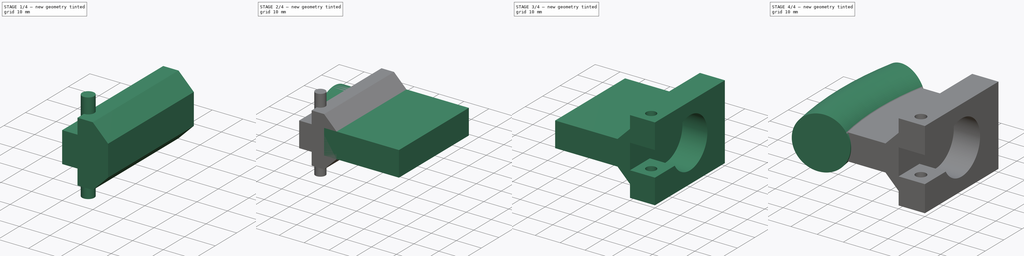
[diagram: build sequence overview — one tinted view per stage of 4, left to right]
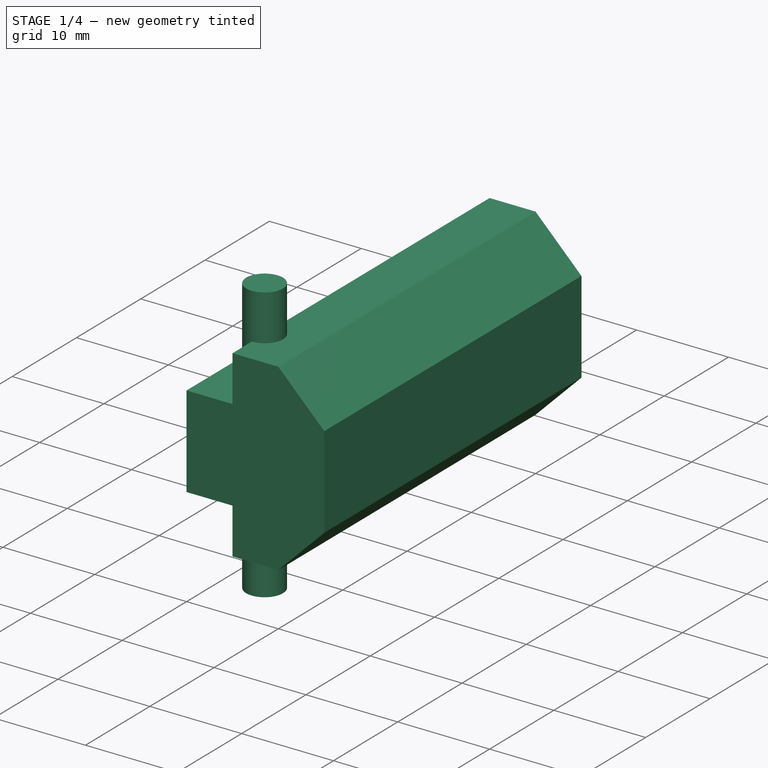
[diagram: stage 1 of 4 — iso view after this stage's code; geometry added in this stage tinted green]
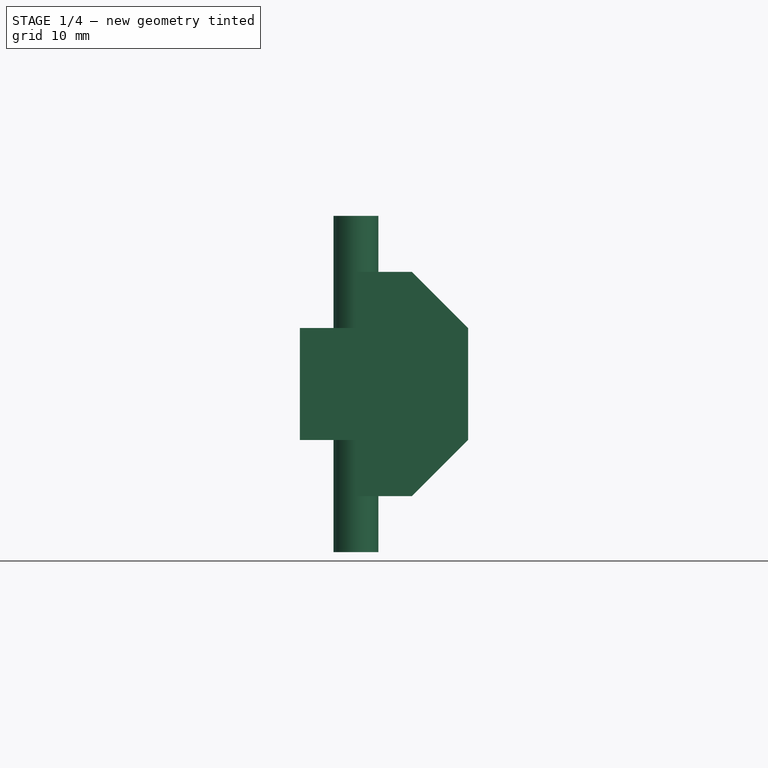
[diagram: stage 1 of 4 — front view after this stage's code; geometry added in this stage tinted green]
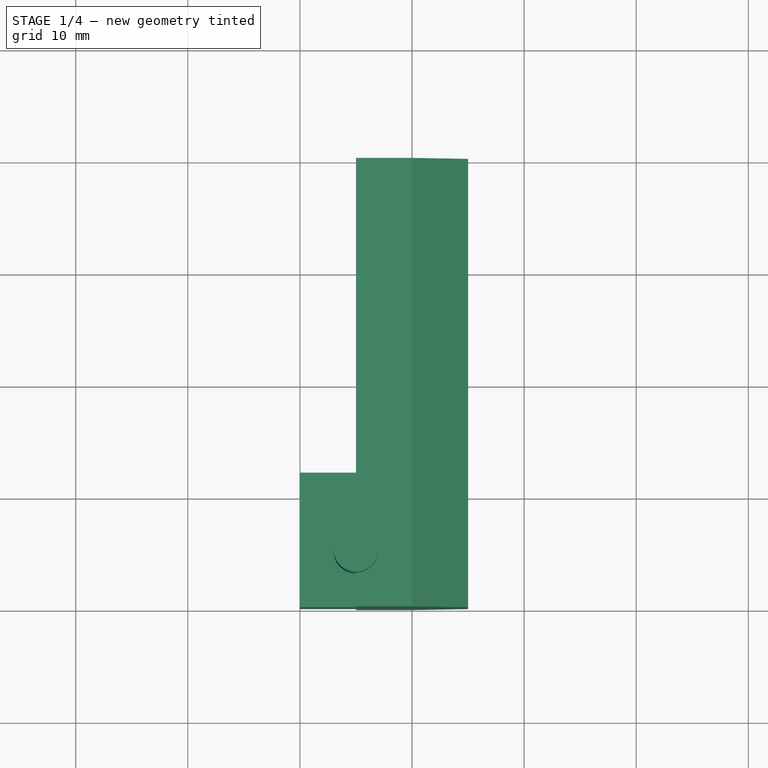
[diagram: stage 1 of 4 — top view after this stage's code; geometry added in this stage tinted green]
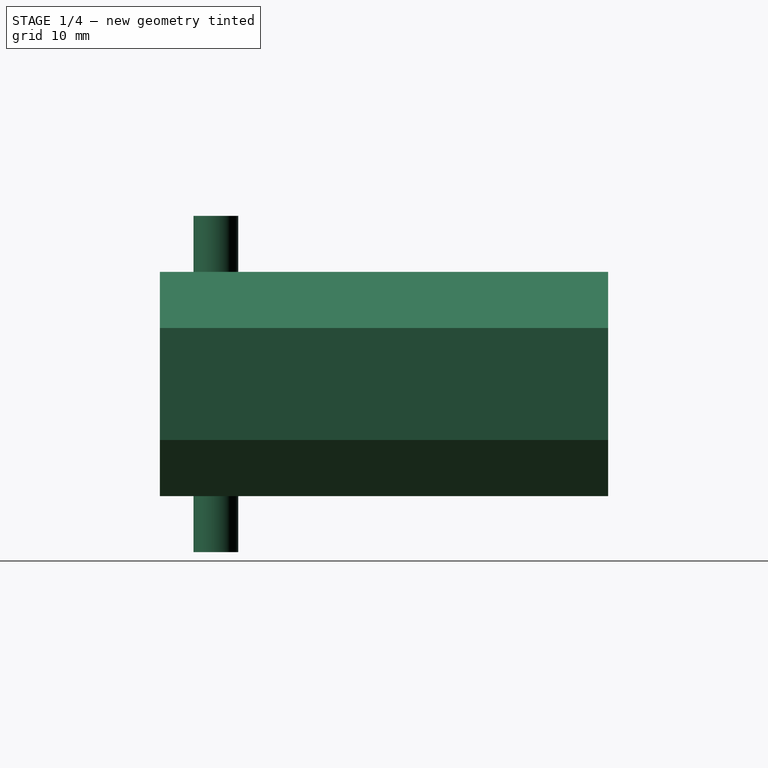
[diagram: stage 1 of 4 — right view after this stage's code; geometry added in this stage tinted green]
FCSTD DOCUMENT  (FreeCAD 0.17R13522 (Git))
Label: turnouter
License: All rights reserved
LicenseURL: http://en.wikipedia.org/wiki/All_rights_reserved
objects: Part::Box×4, Part::Cylinder×2, Part::MultiFuse×2, Part::Torus×1, Sketcher::SketchObject×1, PartDesign::Pad×1, PartDesign::Body×1, Spreadsheet::Sheet×1, Part::MultiCommon×1, Part::Chamfer×1, Part::Cut×1, Part::Compound×1
note: 17 computed .brp shape members not serialized (recipe doc carries the construction recipe); baked Part::Feature solids carry a one-line shape summary decoded from their .brp

FEATURE [Part::Box] Box002  label="Cube002"
  AttacherType = Attacher::AttachEngine3D
  Height = 10
  Length = 10
  Placement = pos=(-40,-20,-5) rot=(0,0,1;0rad)
  Width = 12
FEATURE [Part::Cylinder] Cylinder001
  Angle = 360
  AttacherType = Attacher::AttachEngine3D
  Height = 30
  Placement = pos=(-35,-15,-15) rot=(0,0,1;0rad)
  Radius = 2
FEATURE [Part::Box] Box003  label="Cube003"
  AttacherType = Attacher::AttachEngine3D
  Height = 20
  Length = 10
  Placement = pos=(-35,-20,-10) rot=(0,0,1;0rad)
  Width = 40
FEATURE [Part::Chamfer] Chamfer
  Base = -> Box003
  Edges = 2 edges r=5: [Edge6,Edge8]
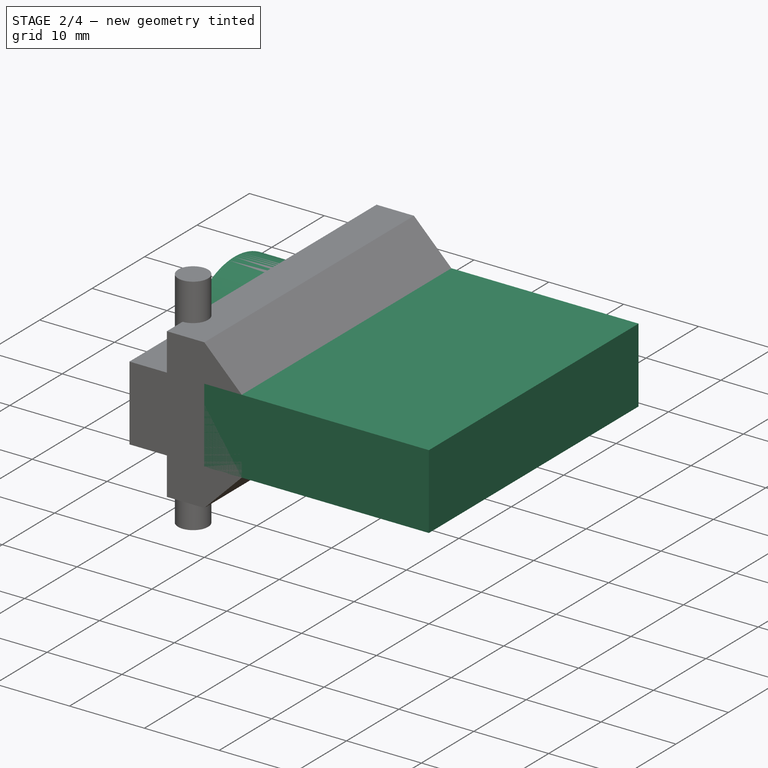
[diagram: stage 2 of 4 — iso view after this stage's code; geometry added in this stage tinted green]
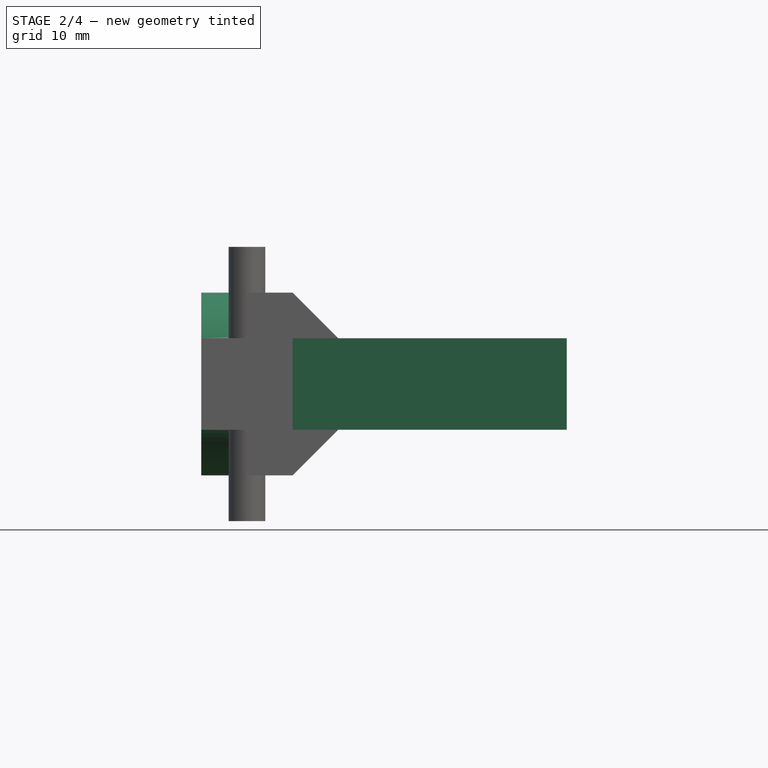
[diagram: stage 2 of 4 — front view after this stage's code; geometry added in this stage tinted green]
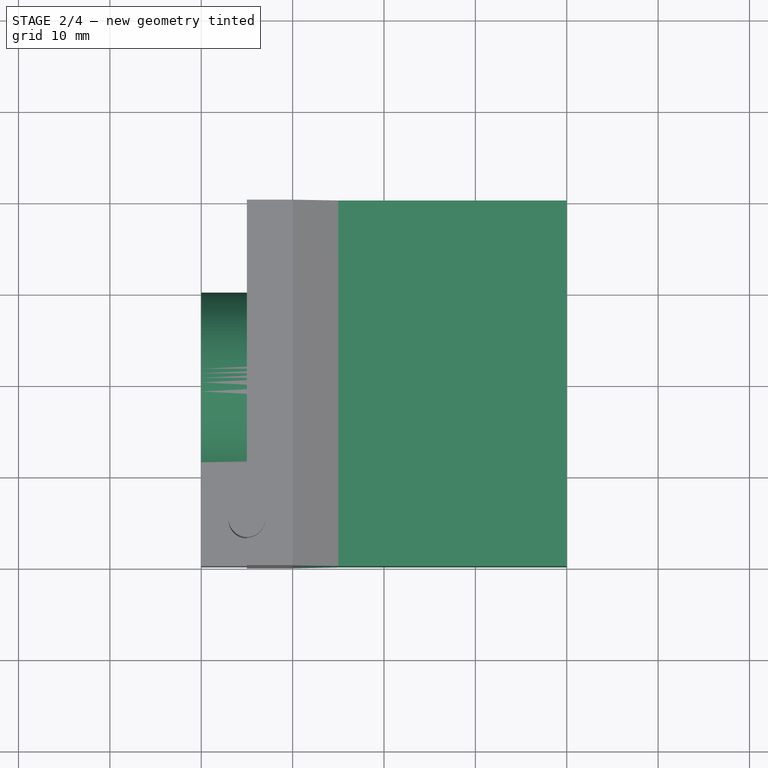
[diagram: stage 2 of 4 — top view after this stage's code; geometry added in this stage tinted green]
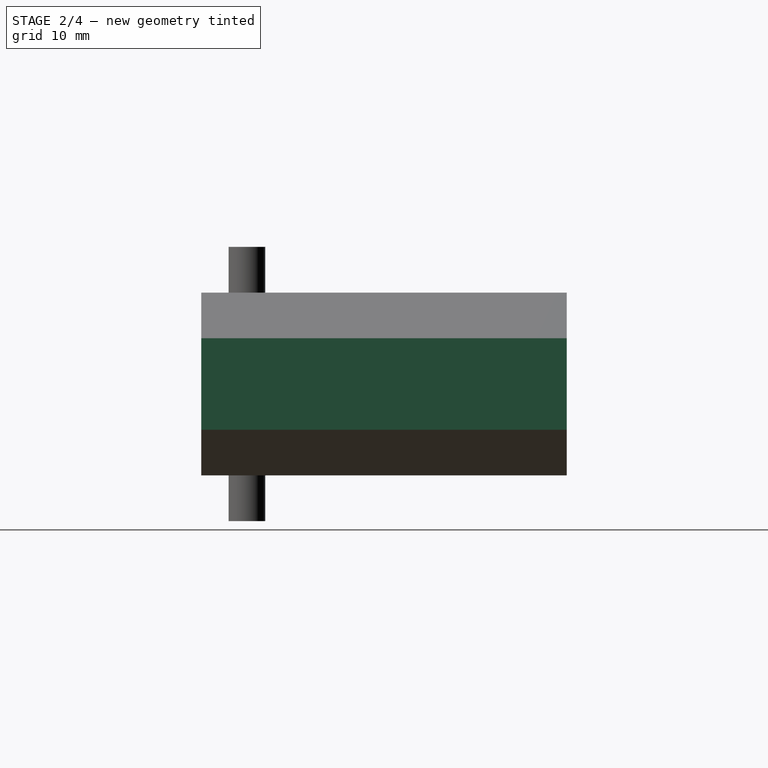
[diagram: stage 2 of 4 — right view after this stage's code; geometry added in this stage tinted green]
FEATURE [Part::Cylinder] Cylinder
  Angle = 360
  AttacherType = Attacher::AttachEngine3D
  Height = 10
  Placement = pos=(-30,0,0) rot=(0,-1,0;1.5708rad)
  Radius = 10
FEATURE [Part::Box] Box001  label="Cube001"
  AttacherType = Attacher::AttachEngine3D
  Height = 10
  Length = 30
  Placement = pos=(-30,-20,-5) rot=(0,0,1;0rad)
  Width = 40
FEATURE [Part::MultiFuse] Fusion001  label="Negative Fusion"
  Shapes = -> [Cylinder,Cylinder001,Box002]
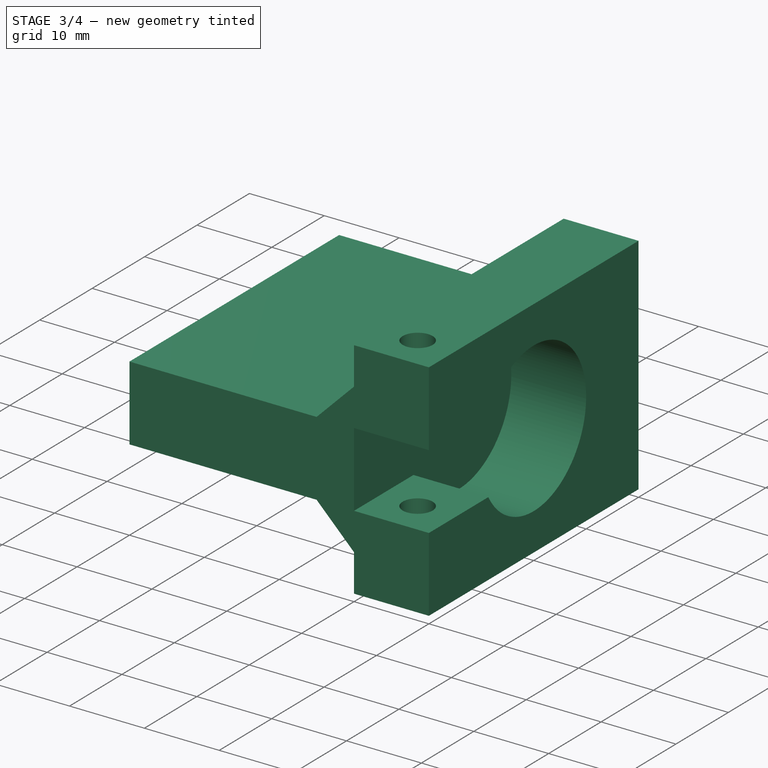
[diagram: stage 3 of 4 — iso view after this stage's code; geometry added in this stage tinted green]
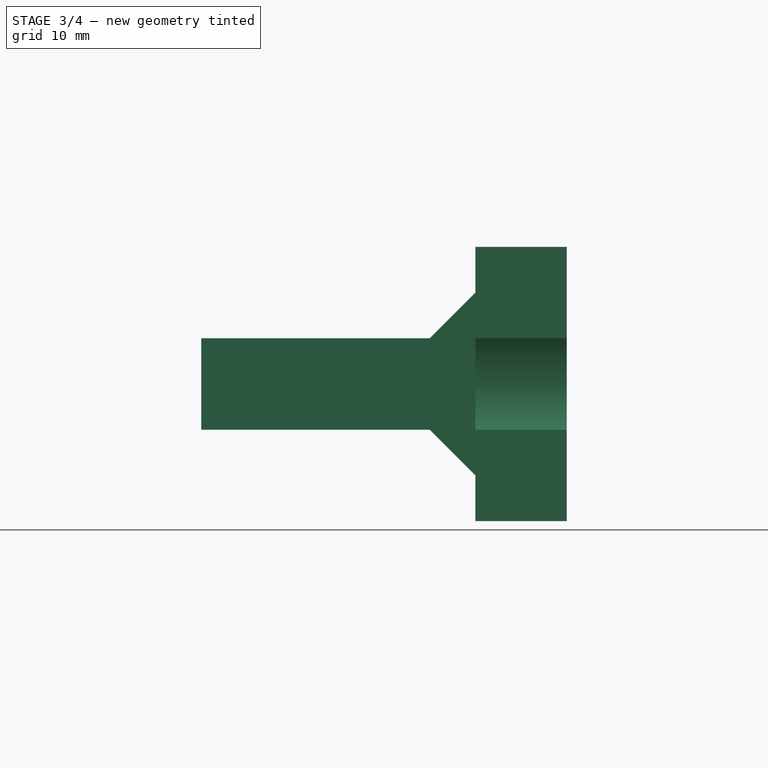
[diagram: stage 3 of 4 — front view after this stage's code; geometry added in this stage tinted green]
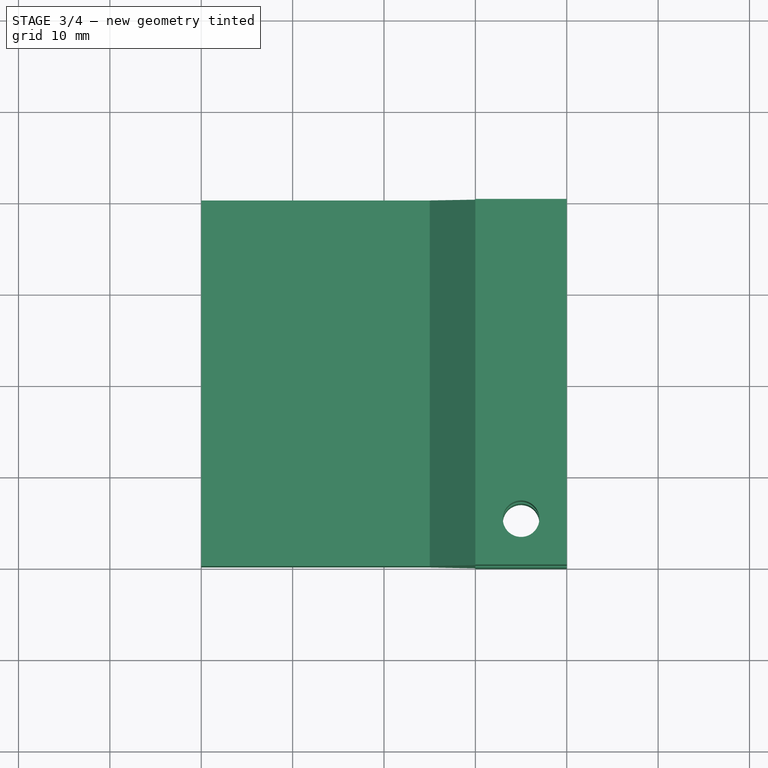
[diagram: stage 3 of 4 — top view after this stage's code; geometry added in this stage tinted green]
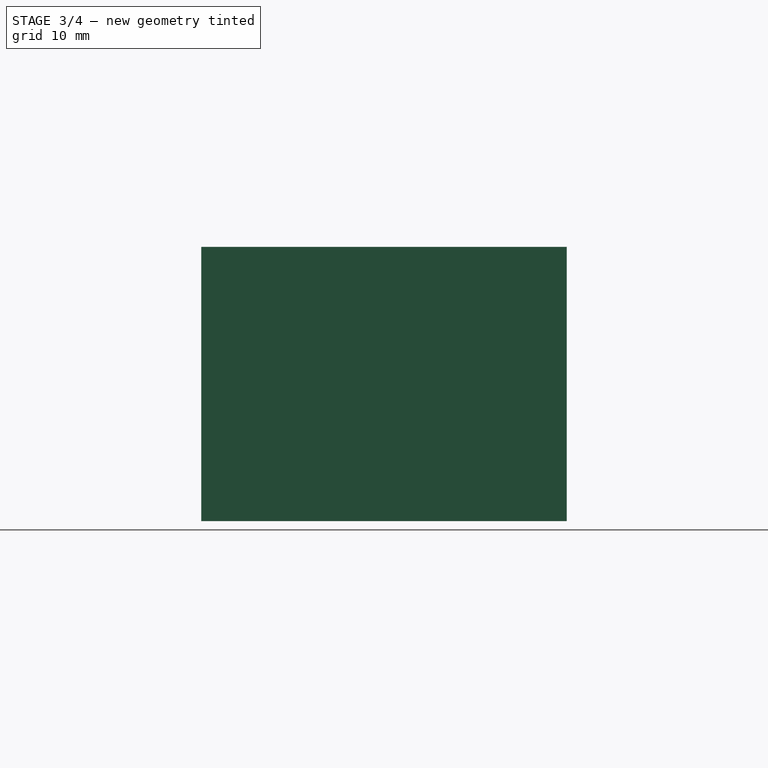
[diagram: stage 3 of 4 — right view after this stage's code; geometry added in this stage tinted green]
FEATURE [PartDesign::Body] Body
  Group = -> [Sketch,Pad]
  Origin = -> Origin
  Tip = -> Pad
FEATURE [Part::Box] Box  label="Cube"
  AttacherType = Attacher::AttachEngine3D
  Height = 30
  Length = 10
  Placement = pos=(-40,-20,-15) rot=(0,0,1;0rad)
  Width = 40
FEATURE [Part::MultiFuse] Fusion  label="Positive Fusion"
  Shapes = -> [Box001,Box,Chamfer]
FEATURE [Part::Cut] Cut
  Base = -> Fusion
  Placement = pos=(0,0,0) rot=(0,1,0;3.14159rad)
  Tool = -> Fusion001
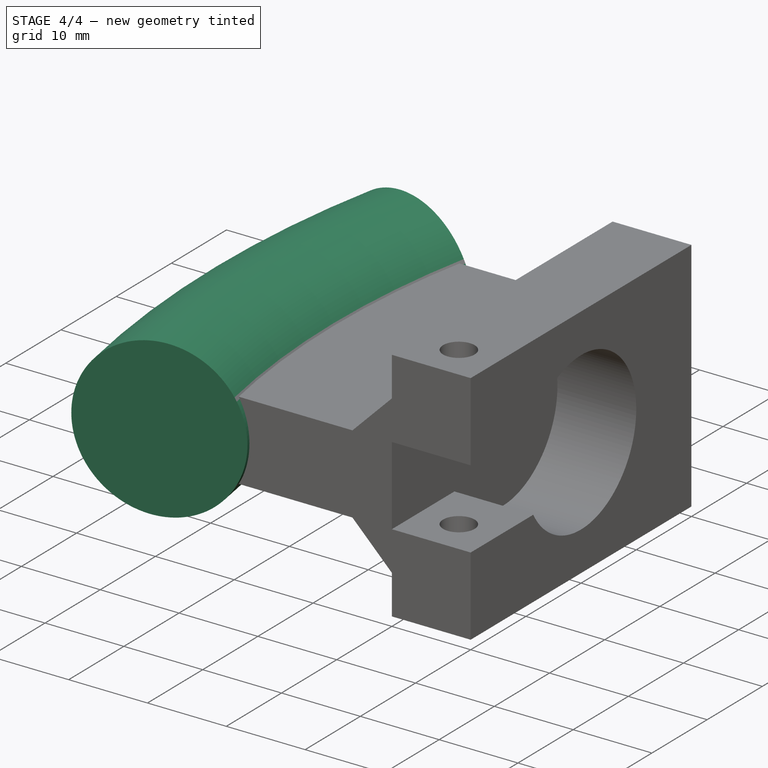
[diagram: stage 4 of 4 — iso view after this stage's code; geometry added in this stage tinted green]
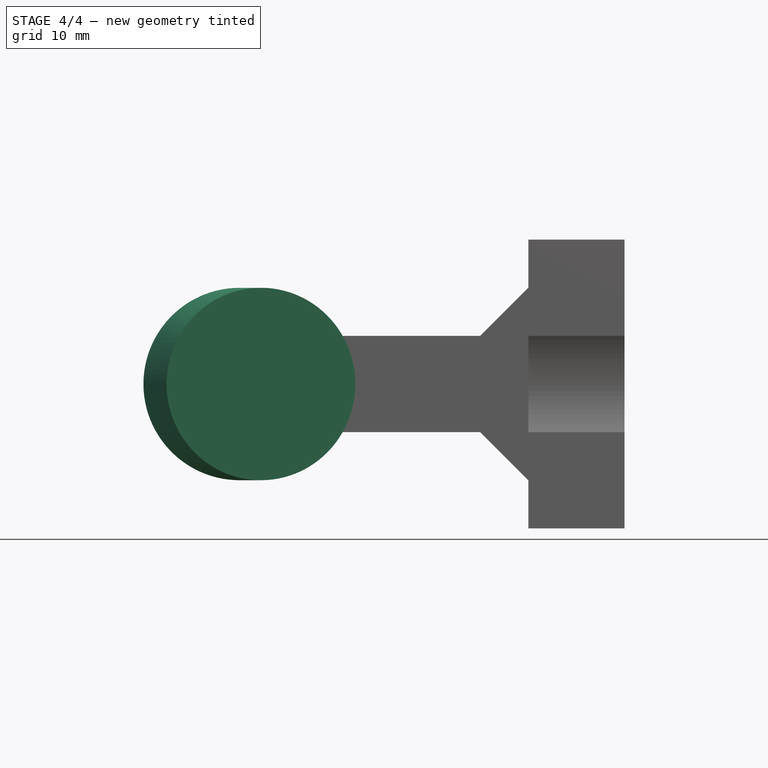
[diagram: stage 4 of 4 — front view after this stage's code; geometry added in this stage tinted green]
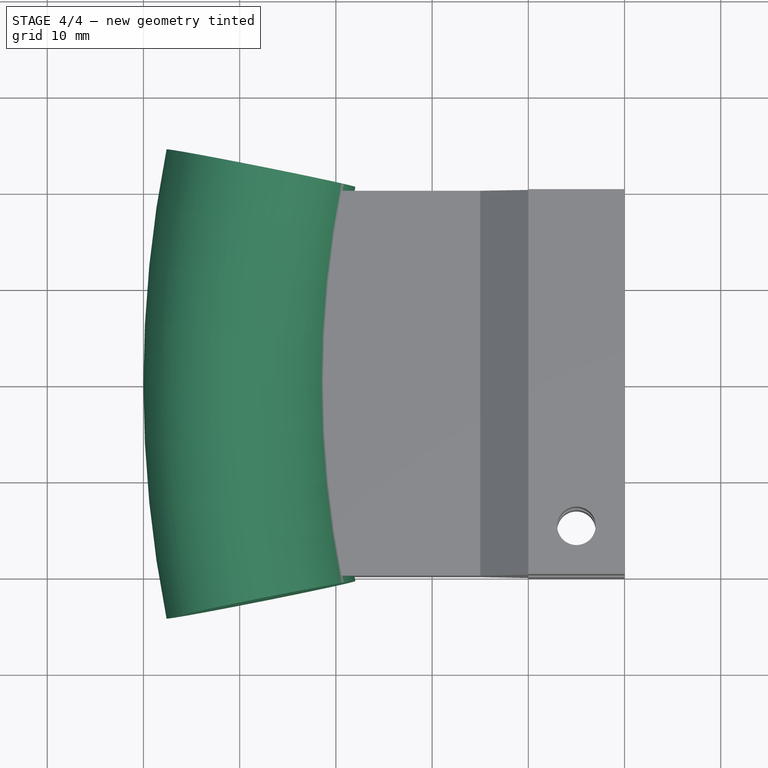
[diagram: stage 4 of 4 — top view after this stage's code; geometry added in this stage tinted green]
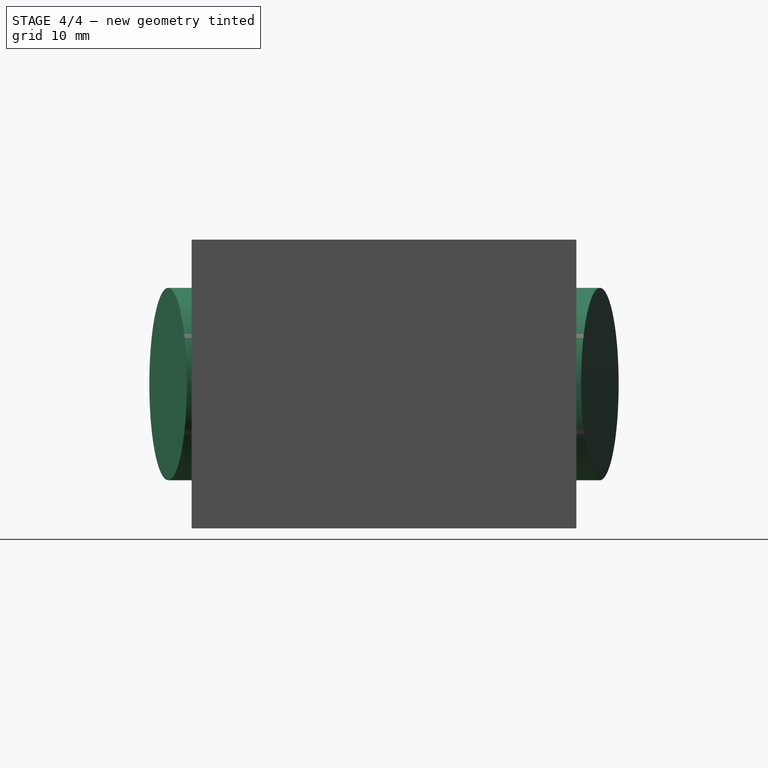
[diagram: stage 4 of 4 — right view after this stage's code; geometry added in this stage tinted green]
FEATURE [Part::Torus] Torus
  Angle1 = -180
  Angle2 = 180
  Angle3 = 360
  AttacherType = Attacher::AttachEngine3D
  Placement = pos=(115,0,0) rot=(0,0,1;0rad)
  Radius1 = 115
  Radius2 = 10
  expr: Radius1 = Vars.turnradius
  expr: Placement.Base.x = Vars.turnradius
FEATURE [Sketcher::SketchObject] Sketch
  MapMode = 5
  Support = -> [XY_Plane]
  expr: Constraints[8] = Vars.turnradius
  sketch-geometry (4):
    g0: LineSegment StartX=-20 StartY=26.8532 StartZ=0 EndX=115 EndY=0 EndZ=0
    g1: LineSegment StartX=115 StartY=0 StartZ=0 EndX=-20 EndY=-26.8532 EndZ=0
    g2: LineSegment StartX=-20 StartY=-26.8532 StartZ=0 EndX=-20 EndY=26.8532 EndZ=0
    g3: GeomPoint X=-20 Y=0 Z=0
  constraints (10):
    c: Vertical(g2)
    c: Angle(g0,g1) = 0.392699
    c: Symmetric(g0,g1,g3)
    c: DistanceY(g3,g-1) = 0
    c: Coincident(g1,g0)
    c: Coincident(g2,g1)
    c: Coincident(g2,g0)
    c: DistanceY(g-1,g0) = 0
    c: DistanceX(g-1,g0) = 115
    c: DistanceX(g3,g-1) = 20
FEATURE [PartDesign::Pad] Pad
  Length = 15
  Length2 = 15
  Profile = -> Sketch
  Type = 4
FEATURE [Spreadsheet::Sheet] Spreadsheet  label="Vars"
  cells = A1(turnradius)=115
FEATURE [Part::MultiCommon] Common  label="Rail Common"
  Shapes = -> [Torus,Body]
FEATURE [Part::Compound] Compound
  Links = -> [Cut,Common]
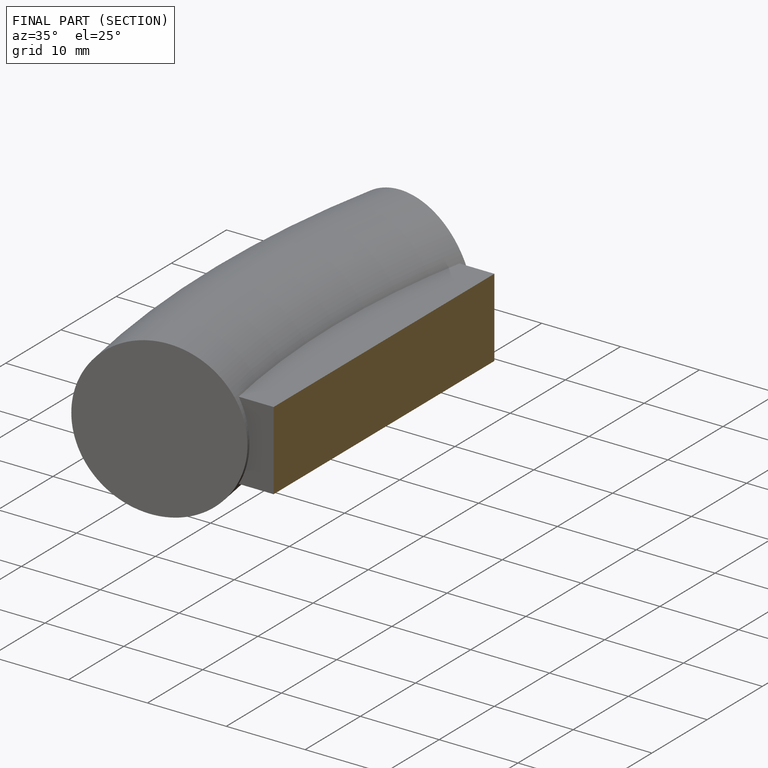
[diagram: finished part — half-section view (interior)]
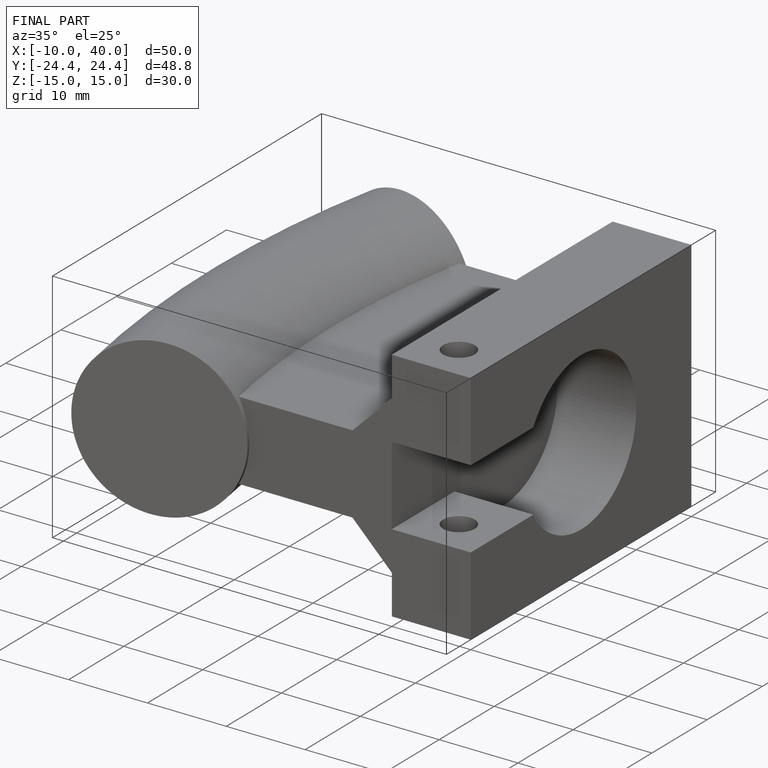
[diagram: finished part — iso view with bounding-box wireframe]
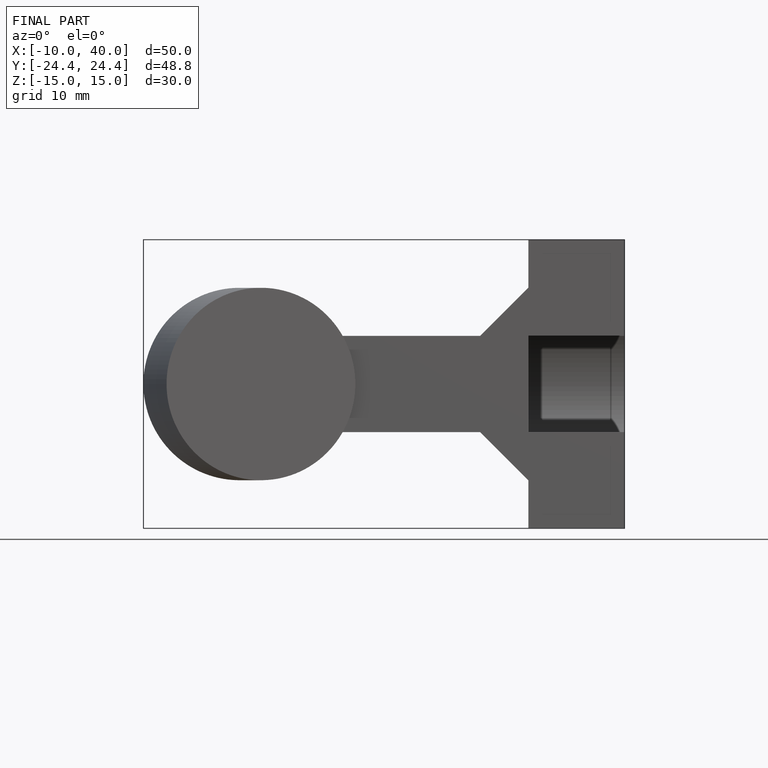
[diagram: finished part — front view with bounding-box wireframe]
